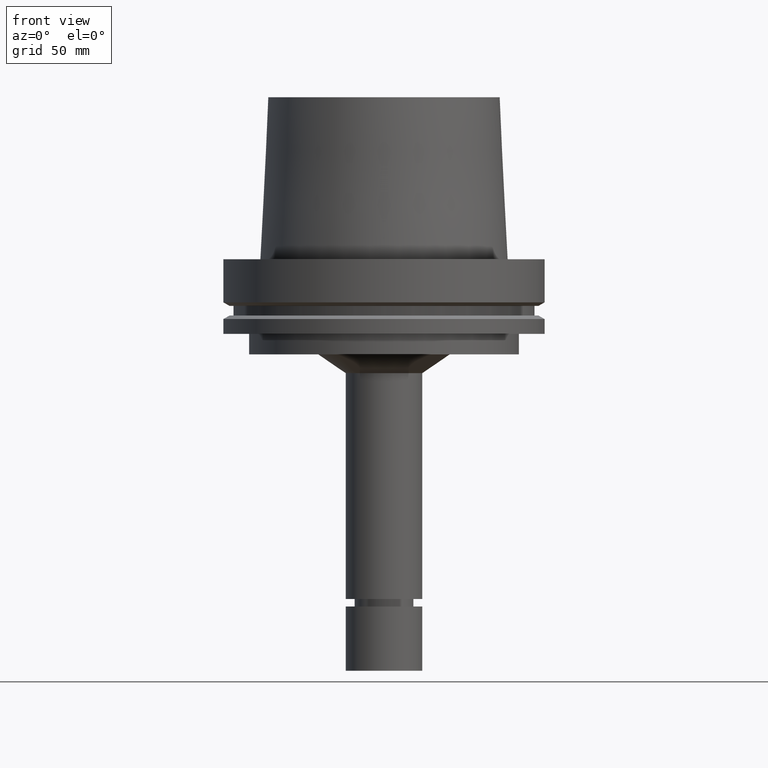
[diagram: clean part render]
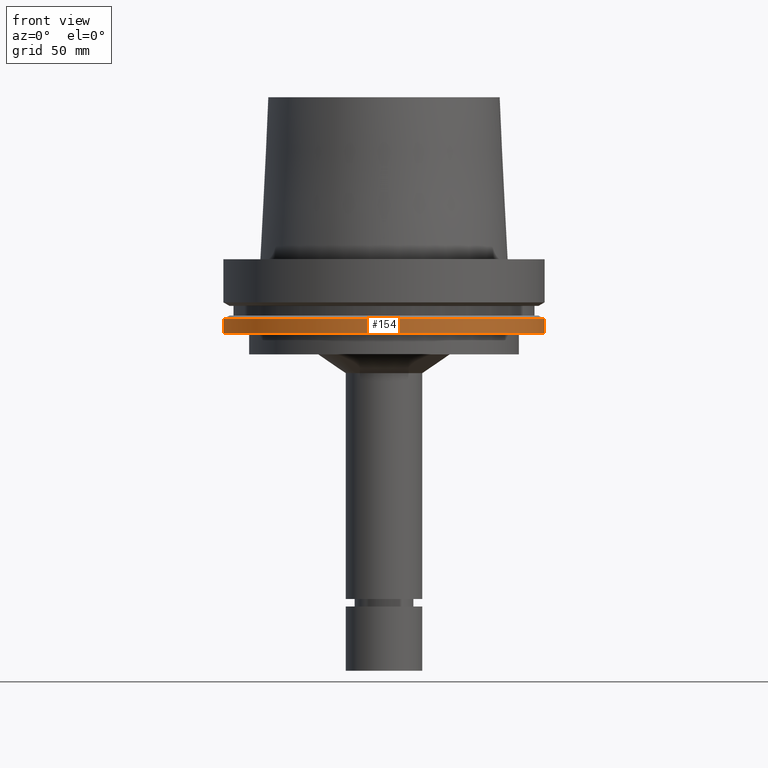
[diagram: same view with one face highlighted and labeled with its STEP entity id]
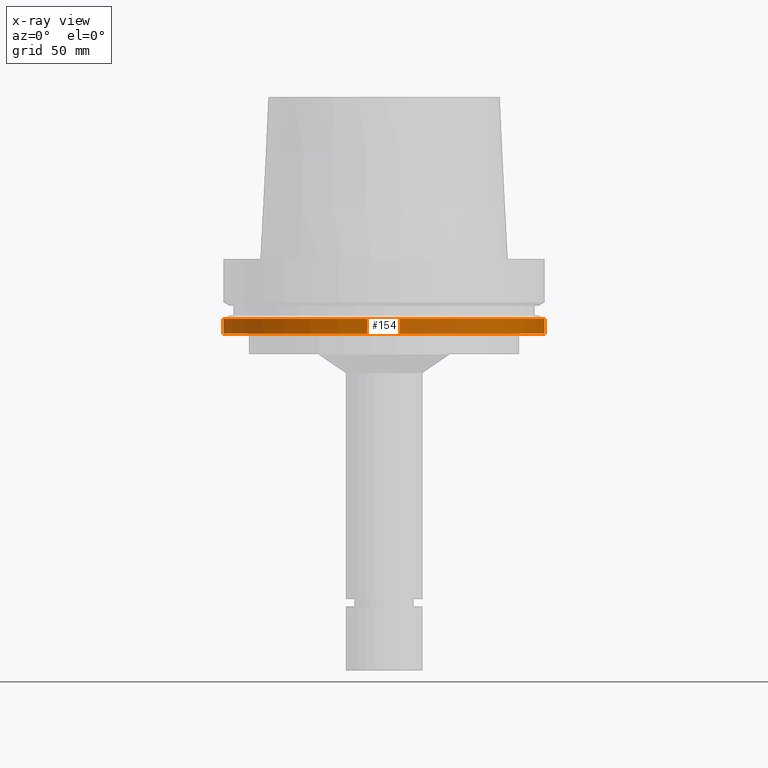
[diagram: x-ray of the same camera — body ghosted, the highlighted face saturated]
A machine part, front view. The second image highlights one B-rep face of the part: STEP entity #154.
The next image is the same camera in x-ray: the body ghosted, the highlighted face saturated — about 0% of this face is hidden behind the body in this view.
In plain terms, the highlighted cylindrical surface (bore or boss wall) has radius 62.5 mm, axis along (0, -0, -1).
Its self-contained STEP definition (entity closure, byte-faithful):
#81=EDGE_CURVE('Unnamed[1]',#222,#222,#223,.T.);
#145=EDGE_CURVE('Unnamed[1]',#319,#319,#320,.T.);
#154=ADVANCED_FACE('Unnamed[1]',(#333,#334),#335,.T.);
#222=VERTEX_POINT('',#422);
#223=CIRCLE('',#423,62.5);
#319=VERTEX_POINT('',#543);
#320=CIRCLE('',#544,62.5);
#333=FACE_BOUND('',#560,.T.);
#334=FACE_BOUND('',#561,.T.);
#335=CYLINDRICAL_SURFACE('',#562,62.5);
#422=CARTESIAN_POINT('',(1.77573785876366E-015,62.5,-29.0));
#423=AXIS2_PLACEMENT_3D('',#655,#656,#657);
#543=CARTESIAN_POINT('',(1.42350465640827E-015,62.5,-23.2475952641916));
#544=AXIS2_PLACEMENT_3D('',#763,#764,#765);
#560=EDGE_LOOP('',(#779));
#561=EDGE_LOOP('',(#780));
#562=AXIS2_PLACEMENT_3D('',#781,#782,#783);
#655=CARTESIAN_POINT('',(1.77573785876366E-015,-1.59592385681868E-014,-29.0));
#656=DIRECTION('',(6.12323399573676E-017,-7.06999605799599E-016,-1.0));
#657=DIRECTION('',(3.84640874812857E-032,1.0,-7.06999605799599E-016));
#763=CARTESIAN_POINT('',(1.42350465640827E-015,-1.18922906875708E-014,-23.2475952641915));
#764=DIRECTION('',(6.12323399573677E-017,-7.06999605799599E-016,-1.0));
#765=DIRECTION('',(3.84640874812857E-032,1.0,-7.06999605799599E-016));
#779=ORIENTED_EDGE('',*,*,#81,.F.);
#780=ORIENTED_EDGE('',*,*,#145,.T.);
#781=CARTESIAN_POINT('',(1.59962125758596E-015,-1.39257646278788E-014,-26.1237976320958));
#782=DIRECTION('',(6.12323399573677E-017,-7.06999605799599E-016,-1.0));
#783=DIRECTION('',(3.84640874812857E-032,1.0,-7.06999605799599E-016));